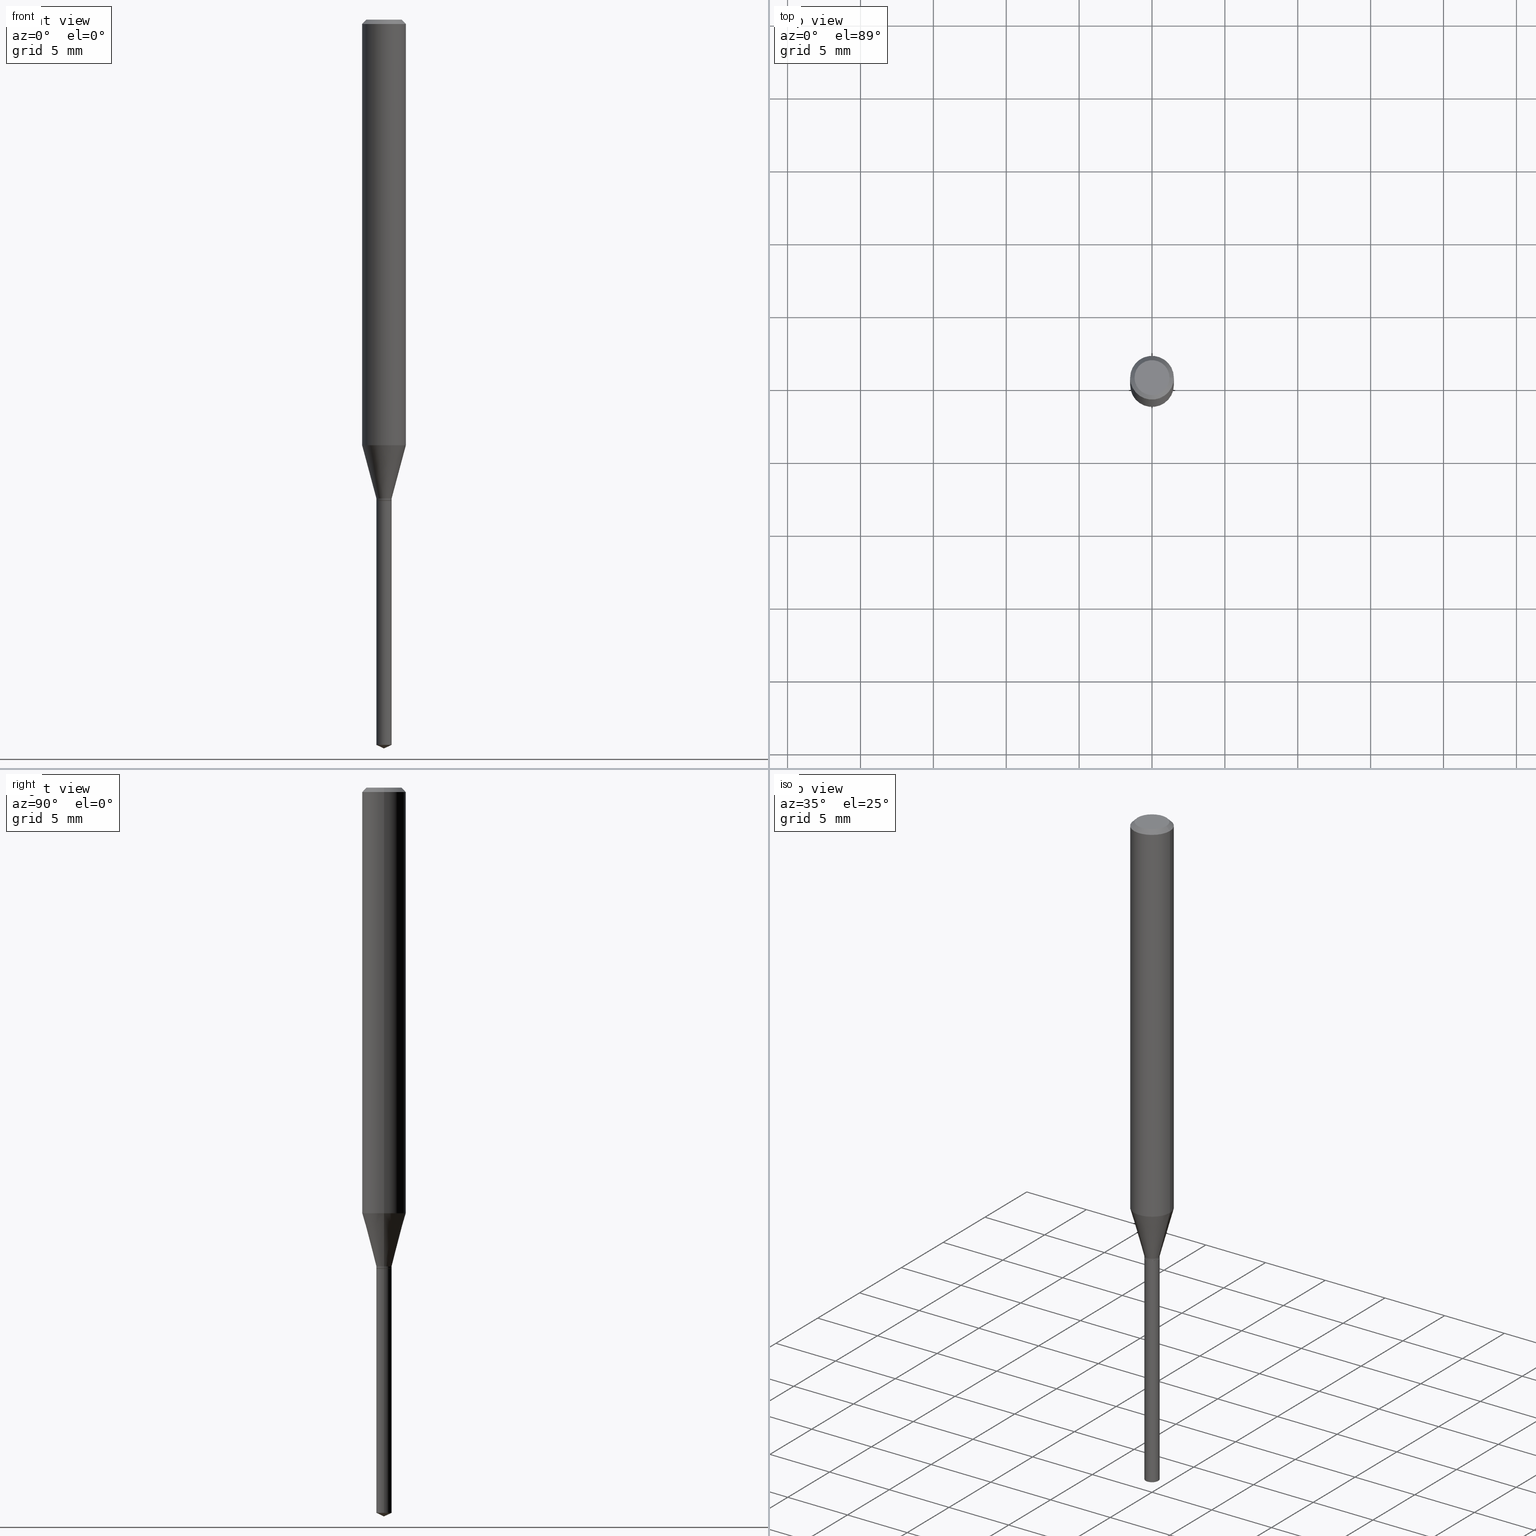
[diagram: canonical four-view strip — front | top / right | iso, engineering-drawing reading convention]
A machine part, canonical four-view strip (front | top / right | iso — engineering-drawing reading convention). The complete STEP part file that produces these views, byte-faithful:
ISO-10303-21;
HEADER;
FILE_DESCRIPTION (( 'STEP AP203' ),
    '1' );
FILE_NAME ('07831.STEP',
    '2024-04-24T04:01:27',
    ( '' ),
    ( '' ),
    'SwSTEP 2.0',
    'SolidWorks 2023',
    '' );
FILE_SCHEMA (( 'CONFIG_CONTROL_DESIGN' ));
ENDSEC;

DATA;
#1 = AXIS2_PLACEMENT_3D ( 'NONE', #14, #62, #412 ) ;
#2 = CC_DESIGN_SECURITY_CLASSIFICATION ( #212, ( #422 ) ) ;
#3 = LINE ( 'NONE', #202, #168 ) ;
#4 = VERTEX_POINT ( 'NONE', #189 ) ;
#5 = APPROVAL_DATE_TIME ( #250, #283 ) ;
#6 = APPROVAL_ROLE ( '' ) ;
#7 = CIRCLE ( 'NONE', #34, 0.02065000000000002944 ) ;
#8 = EDGE_LOOP ( 'NONE', ( #140, #255, #180 ) ) ;
#9 = EDGE_CURVE ( 'NONE', #381, #390, #194, .T. ) ;
#10 = ORIENTED_EDGE ( 'NONE', *, *, #431, .T. ) ;
#11 = DIRECTION ( 'NONE',  ( 1.000000000000000000, -6.982962677686264344E-15, 0.000000000000000000 ) ) ;
#12 = CARTESIAN_POINT ( 'NONE',  ( 0.02065000000000000863, -6.983558837158501362E-15, -1.958870746859099343 ) ) ;
#13 = PERSON_AND_ORGANIZATION ( #451, #465 ) ;
#14 = CARTESIAN_POINT ( 'NONE',  ( 8.265746106709734507E-48, -1.180129479067563789E-33, -3.380025165646692144E-19 ) ) ;
#15 = COORDINATED_UNIVERSAL_TIME_OFFSET ( 5, 0, .BEHIND. ) ;
#16 = AXIS2_PLACEMENT_3D ( 'NONE', #483, #109, #205 ) ;
#17 = SHAPE_DEFINITION_REPRESENTATION ( #489, #90 ) ;
#18 = CARTESIAN_POINT ( 'NONE',  ( -0.05905000000000006771, 4.195754854663396409E-16, -2.904631170795525045E-30 ) ) ;
#19 = DIRECTION ( 'NONE',  ( -2.445468806185136597E-29, 3.491481338843145583E-15, 1.000000000000000000 ) ) ;
#20 = DIRECTION ( 'NONE',  ( -2.445468806185136597E-29, 3.491481338843145583E-15, 1.000000000000000000 ) ) ;
#21 = EDGE_LOOP ( 'NONE', ( #471, #10, #440 ) ) ;
#22 = DIRECTION ( 'NONE',  ( 2.445468806185136597E-29, -3.491481338843145583E-15, -1.000000000000000000 ) ) ;
#23 = EDGE_CURVE ( 'NONE', #480, #4, #453, .T. ) ;
#24 = CONICAL_SURFACE ( 'NONE', #484, 0.05904999999999999832, 0.7853981633974452814 ) ;
#25 = DESIGN_CONTEXT ( 'detailed design', #312, 'design' ) ;
#26 = CARTESIAN_POINT ( 'NONE',  ( 4.790357306792508112E-29, -6.839360657864280434E-15, -1.958870746859099343 ) ) ;
#27 = ORIENTED_EDGE ( 'NONE', *, *, #270, .F. ) ;
#28 = DIRECTION ( 'NONE',  ( -2.445468806185136597E-29, 3.491481338843145583E-15, 1.000000000000000000 ) ) ;
#29 = DIRECTION ( 'NONE',  ( -2.445468806185136597E-29, 3.491481338843145583E-15, 1.000000000000000000 ) ) ;
#30 = DIRECTION ( 'NONE',  ( -0.7071067811868312347, 7.493145998871379679E-15, 0.7071067811862637997 ) ) ;
#31 = PLANE ( 'NONE',  #193 ) ;
#32 = CARTESIAN_POINT ( 'NONE',  ( -0.04724000000000000421, 3.504923541997677355E-16, -3.380025165670481712E-19 ) ) ;
#33 = DIRECTION ( 'NONE',  ( 1.000000000000000000, -6.982962677686266711E-15, 4.876185090822587894E-29 ) ) ;
#34 = AXIS2_PLACEMENT_3D ( 'NONE', #415, #409, #230 ) ;
#35 =( GEOMETRIC_REPRESENTATION_CONTEXT ( 3 ) GLOBAL_UNCERTAINTY_ASSIGNED_CONTEXT ( ( #124 ) ) GLOBAL_UNIT_ASSIGNED_CONTEXT ( ( #207, #457, #158 ) ) REPRESENTATION_CONTEXT ( 'NONE', 'WORKASPACE' ) );
#36 = DIRECTION ( 'NONE',  ( -2.445468806185136877E-29, 3.491481338843145188E-15, 1.000000000000000000 ) ) ;
#37 = FACE_OUTER_BOUND ( 'NONE', #317, .T. ) ;
#38 = DIRECTION ( 'NONE',  ( -2.445468806185136597E-29, 3.491481338843145583E-15, 1.000000000000000000 ) ) ;
#39 = CARTESIAN_POINT ( 'NONE',  ( 8.265746106709734507E-48, -1.180129479067563789E-33, -3.380025165646692144E-19 ) ) ;
#40 = DIRECTION ( 'NONE',  ( -2.445468806185136877E-29, 3.491481338843145188E-15, 1.000000000000000000 ) ) ;
#41 = CARTESIAN_POINT ( 'NONE',  ( 3.177153072995729878E-29, -4.536132555425015522E-15, -1.299200000000000133 ) ) ;
#42 = CIRCLE ( 'NONE', #211, 0.02065000000000000169 ) ;
#43 = AXIS2_PLACEMENT_3D ( 'NONE', #389, #242, #118 ) ;
#44 = ORIENTED_EDGE ( 'NONE', *, *, #359, .T. ) ;
#45 = FACE_OUTER_BOUND ( 'NONE', #292, .T. ) ;
#46 = ORIENTED_EDGE ( 'NONE', *, *, #174, .F. ) ;
#47 = APPROVAL_STATUS ( 'not_yet_approved' ) ;
#48 = ORIENTED_EDGE ( 'NONE', *, *, #273, .F. ) ;
#49 = CARTESIAN_POINT ( 'NONE',  ( 0.05905000000000015098, -4.426462504432298704E-15, -1.149689248989355095 ) ) ;
#50 = MECHANICAL_CONTEXT ( 'NONE', #91, 'mechanical' ) ;
#51 = CARTESIAN_POINT ( 'NONE',  ( 2.888098660104663328E-31, -4.123439461173779030E-17, -0.01181000000000006871 ) ) ;
#52 = CARTESIAN_POINT ( 'NONE',  ( 0.000000000000000000, 0.000000000000000000, 0.000000000000000000 ) ) ;
#53 = ORIENTED_EDGE ( 'NONE', *, *, #214, .T. ) ;
#54 = VECTOR ( 'NONE', #112, 39.37007874015748854 ) ;
#55 = CIRCLE ( 'NONE', #83, 0.05905000000000014404 ) ;
#56 = CYLINDRICAL_SURFACE ( 'NONE', #253, 0.02065000000000000169 ) ;
#57 = ORIENTED_EDGE ( 'NONE', *, *, #214, .F. ) ;
#58 = CARTESIAN_POINT ( 'NONE',  ( 3.177153072995729878E-29, -4.536132555425015522E-15, -1.299200000000000133 ) ) ;
#59 = DIRECTION ( 'NONE',  ( -2.445468806185136597E-29, 3.491481338843145583E-15, 1.000000000000000000 ) ) ;
#60 = EDGE_CURVE ( 'NONE', #287, #333, #236, .T. ) ;
#61 = ORIENTED_EDGE ( 'NONE', *, *, #72, .T. ) ;
#62 = DIRECTION ( 'NONE',  ( -2.445468806185136597E-29, 3.491481338843145583E-15, 1.000000000000000000 ) ) ;
#63 = CARTESIAN_POINT ( 'NONE',  ( 0.05905000000000006771, -4.123439461173745257E-16, 2.879382386107503723E-30 ) ) ;
#64 = DIRECTION ( 'NONE',  ( 1.000000000000000000, -6.982962677686272233E-15, 0.000000000000000000 ) ) ;
#65 = VERTEX_POINT ( 'NONE', #424 ) ;
#66 = ADVANCED_FACE ( 'NONE', ( #418 ), #142, .T. ) ;
#67 = AXIS2_PLACEMENT_3D ( 'NONE', #136, #190, #298 ) ;
#68 = DIRECTION ( 'NONE',  ( -2.445468806185136597E-29, 3.491481338843145583E-15, 1.000000000000000000 ) ) ;
#69 = CARTESIAN_POINT ( 'NONE',  ( 4.813905344975441835E-29, -6.872981015512731707E-15, -1.968500000000000139 ) ) ;
#70 = CARTESIAN_POINT ( 'NONE',  ( 0.02065000000000002944, -4.658683550418409017E-15, -1.293000000000000149 ) ) ;
#71 = CARTESIAN_POINT ( 'NONE',  ( -0.02015000000000000124, -4.390308966995244914E-15, -1.299200000000000133 ) ) ;
#72 = EDGE_CURVE ( 'NONE', #89, #461, #74, .T. ) ;
#73 = CARTESIAN_POINT ( 'NONE',  ( 3.177153072995729878E-29, -4.536132555425015522E-15, -1.299200000000000133 ) ) ;
#74 = CIRCLE ( 'NONE', #16, 0.05904999999999999832 ) ;
#75 = DIRECTION ( 'NONE',  ( 1.000000000000000000, -6.982962677686264344E-15, 0.000000000000000000 ) ) ;
#76 = CARTESIAN_POINT ( 'NONE',  ( -0.05905000000000015098, -3.594543072848583502E-15, -1.149689248989355095 ) ) ;
#77 = DIRECTION ( 'NONE',  ( -2.445468806185136597E-29, 3.491481338843145583E-15, 1.000000000000000000 ) ) ;
#78 = LINE ( 'NONE', #272, #356 ) ;
#79 = DIRECTION ( 'NONE',  ( -0.7071067811865453523, 2.468850131082234184E-15, -0.7071067811865496822 ) ) ;
#80 = ADVANCED_FACE ( 'NONE', ( #445 ), #245, .T. ) ;
#81 = CARTESIAN_POINT ( 'NONE',  ( 0.000000000000000000, 0.000000000000000000, 0.000000000000000000 ) ) ;
#82 = AXIS2_PLACEMENT_3D ( 'NONE', #52, #144, #219 ) ;
#83 = AXIS2_PLACEMENT_3D ( 'NONE', #176, #434, #301 ) ;
#84 = APPROVAL_PERSON_ORGANIZATION ( #249, #449, #463 ) ;
#85 = ORIENTED_EDGE ( 'NONE', *, *, #305, .F. ) ;
#86 = EDGE_CURVE ( 'NONE', #337, #141, #464, .T. ) ;
#87 = PRODUCT ( '07831', '07831', '', ( #50 ) ) ;
#88 = CALENDAR_DATE ( 2024, 24, 4 ) ;
#89 = VERTEX_POINT ( 'NONE', #300 ) ;
#90 = ADVANCED_BREP_SHAPE_REPRESENTATION ( '07831', ( #186, #201, #330 ), #35 ) ;
#91 = APPLICATION_CONTEXT ( 'configuration controlled 3d designs of mechanical parts and assemblies' ) ;
#92 = CIRCLE ( 'NONE', #221, 0.05905000000000014404 ) ;
#93 = ORIENTED_EDGE ( 'NONE', *, *, #372, .F. ) ;
#94 = FACE_OUTER_BOUND ( 'NONE', #138, .T. ) ;
#95 = APPROVAL_STATUS ( 'not_yet_approved' ) ;
#96 = ADVANCED_FACE ( 'NONE', ( #133 ), #408, .T. ) ;
#97 = CARTESIAN_POINT ( 'NONE',  ( -0.02065000000000002944, -4.367758296189726994E-15, -1.293000000000000149 ) ) ;
#98 = VERTEX_POINT ( 'NONE', #49 ) ;
#99 = CC_DESIGN_PERSON_AND_ORGANIZATION_ASSIGNMENT ( #13, #428, ( #240 ) ) ;
#100 = CARTESIAN_POINT ( 'NONE',  ( 3.177153072995729878E-29, -4.536132555425015522E-15, -1.299200000000000133 ) ) ;
#101 = DIRECTION ( 'NONE',  ( -2.445468806185136597E-29, 3.491481338843145583E-15, 1.000000000000000000 ) ) ;
#102 = AXIS2_PLACEMENT_3D ( 'NONE', #382, #28, #197 ) ;
#103 = AXIS2_PLACEMENT_3D ( 'NONE', #41, #77, #387 ) ;
#104 = CYLINDRICAL_SURFACE ( 'NONE', #268, 0.02065000000000002944 ) ;
#105 = VERTEX_POINT ( 'NONE', #328 ) ;
#106 = LINE ( 'NONE', #191, #294 ) ;
#107 = EDGE_CURVE ( 'NONE', #65, #287, #329, .T. ) ;
#108 = DIRECTION ( 'NONE',  ( 1.000000000000000000, -6.982962677686254878E-15, 0.000000000000000000 ) ) ;
#109 = DIRECTION ( 'NONE',  ( -2.445468806185136597E-29, 3.491481338843145583E-15, 1.000000000000000000 ) ) ;
#110 = ORIENTED_EDGE ( 'NONE', *, *, #270, .T. ) ;
#111 = CARTESIAN_POINT ( 'NONE',  ( 3.175930338592638198E-29, -4.534386814755595596E-15, -1.298700000000000632 ) ) ;
#112 = DIRECTION ( 'NONE',  ( 0.9063077870366487154, -4.853149677051359857E-15, 0.4226182617407022724 ) ) ;
#113 = VECTOR ( 'NONE', #340, 39.37007874015748854 ) ;
#114 = CC_DESIGN_APPROVAL ( #283, ( #240 ) ) ;
#115 = PLANE ( 'NONE',  #181 ) ;
#116 = DIRECTION ( 'NONE',  ( -2.445468806185136597E-29, 3.491481338843145583E-15, 1.000000000000000000 ) ) ;
#117 = DIRECTION ( 'NONE',  ( -2.445468806185136597E-29, 3.491481338843145583E-15, 1.000000000000000000 ) ) ;
#118 = DIRECTION ( 'NONE',  ( 1.000000000000000000, -6.982962677686254878E-15, 0.000000000000000000 ) ) ;
#119 = VECTOR ( 'NONE', #40, 39.37007874015748143 ) ;
#120 = EDGE_CURVE ( 'NONE', #224, #402, #442, .T. ) ;
#121 = DIRECTION ( 'NONE',  ( 1.000000000000000000, -6.982962677686254878E-15, 0.000000000000000000 ) ) ;
#122 = DIRECTION ( 'NONE',  ( -2.445468806185136877E-29, 3.491481338843145188E-15, 1.000000000000000000 ) ) ;
#123 = CARTESIAN_POINT ( 'NONE',  ( 0.02065000000000002944, -4.658683550418409017E-15, -1.293000000000000149 ) ) ;
#124 = UNCERTAINTY_MEASURE_WITH_UNIT (LENGTH_MEASURE( 1.000000000000000082E-05 ), #207, 'distance_accuracy_value', 'NONE');
#125 = ORIENTED_EDGE ( 'NONE', *, *, #359, .F. ) ;
#126 = ORIENTED_EDGE ( 'NONE', *, *, #344, .T. ) ;
#127 = CIRCLE ( 'NONE', #275, 0.02065000000000000169 ) ;
#128 = APPROVAL_PERSON_ORGANIZATION ( #137, #283, #6 ) ;
#129 = DATE_TIME_ROLE ( 'creation_date' ) ;
#130 = PRODUCT_RELATED_PRODUCT_CATEGORY ( 'detail', '', ( #87 ) ) ;
#131 = SECURITY_CLASSIFICATION_LEVEL ( 'unclassified' ) ;
#132 = ORIENTED_EDGE ( 'NONE', *, *, #72, .F. ) ;
#133 = FACE_OUTER_BOUND ( 'NONE', #478, .T. ) ;
#134 = VECTOR ( 'NONE', #173, 39.37007874015748143 ) ;
#135 = ORIENTED_EDGE ( 'NONE', *, *, #280, .F. ) ;
#136 = CARTESIAN_POINT ( 'NONE',  ( 3.177153072995729878E-29, -4.536132555425015522E-15, -1.299200000000000133 ) ) ;
#137 = PERSON_AND_ORGANIZATION ( #451, #465 ) ;
#138 = EDGE_LOOP ( 'NONE', ( #466, #468, #297, #125 ) ) ;
#139 = DIRECTION ( 'NONE',  ( 1.000000000000000000, -6.982962677686266711E-15, 0.000000000000000000 ) ) ;
#140 = ORIENTED_EDGE ( 'NONE', *, *, #431, .F. ) ;
#141 = VERTEX_POINT ( 'NONE', #477 ) ;
#142 = CONICAL_SURFACE ( 'NONE', #458, 0.02065000000000002944, 0.2617993877991499629 ) ;
#143 = CARTESIAN_POINT ( 'NONE',  ( 2.888098660104663328E-31, -4.123439461173779030E-17, -0.01181000000000006871 ) ) ;
#144 = DIRECTION ( 'NONE',  ( -2.445468806185136597E-29, 3.491481338843145583E-15, 1.000000000000000000 ) ) ;
#145 = ORIENTED_EDGE ( 'NONE', *, *, #9, .T. ) ;
#146 = CARTESIAN_POINT ( 'NONE',  ( 0.02065000000000002944, -4.678584994049816524E-15, -1.298700000000000632 ) ) ;
#147 = APPROVAL ( #47, 'UNSPECIFIED' ) ;
#148 = DIRECTION ( 'NONE',  ( 1.000000000000000000, -6.982962677686264344E-15, 0.000000000000000000 ) ) ;
#149 = ORIENTED_EDGE ( 'NONE', *, *, #349, .F. ) ;
#150 = DIRECTION ( 'NONE',  ( -2.445468806185136597E-29, 3.491481338843145583E-15, 1.000000000000000000 ) ) ;
#151 = EDGE_CURVE ( 'NONE', #98, #461, #444, .T. ) ;
#152 = CARTESIAN_POINT ( 'NONE',  ( -0.02065000000000000169, -4.389405480490555216E-15, -1.299200000000000133 ) ) ;
#153 = AXIS2_PLACEMENT_3D ( 'NONE', #256, #101, #370 ) ;
#154 = CIRCLE ( 'NONE', #448, 0.02015000000000000124 ) ;
#155 = DIRECTION ( 'NONE',  ( -2.445468806185136597E-29, 3.491481338843145583E-15, 1.000000000000000000 ) ) ;
#156 = ADVANCED_FACE ( 'NONE', ( #94 ), #308, .T. ) ;
#157 = CARTESIAN_POINT ( 'NONE',  ( 4.813905344975441835E-29, -6.872981015512731707E-15, -1.968500000000000139 ) ) ;
#158 =( NAMED_UNIT ( * ) SI_UNIT ( $, .STERADIAN. ) SOLID_ANGLE_UNIT ( ) );
#159 = DIRECTION ( 'NONE',  ( -1.000000000000000000, 6.982962677686265922E-15, -4.876176775795935793E-29 ) ) ;
#160 = AXIS2_PLACEMENT_3D ( 'NONE', #467, #469, #295 ) ;
#161 = EDGE_LOOP ( 'NONE', ( #27, #187, #208, #171 ) ) ;
#162 = CARTESIAN_POINT ( 'NONE',  ( 3.177153072995729878E-29, -4.536132555425015522E-15, -1.299200000000000133 ) ) ;
#163 = ORIENTED_EDGE ( 'NONE', *, *, #419, .F. ) ;
#164 = CYLINDRICAL_SURFACE ( 'NONE', #313, 0.05905000000000006771 ) ;
#165 = CALENDAR_DATE ( 2024, 24, 4 ) ;
#166 = ADVANCED_FACE ( 'NONE', ( #398 ), #24, .T. ) ;
#167 = ORIENTED_EDGE ( 'NONE', *, *, #344, .F. ) ;
#168 = VECTOR ( 'NONE', #488, 39.37007874015748854 ) ;
#169 = COORDINATED_UNIVERSAL_TIME_OFFSET ( 5, 0, .BEHIND. ) ;
#170 = CC_DESIGN_PERSON_AND_ORGANIZATION_ASSIGNMENT ( #392, #319, ( #422 ) ) ;
#171 = ORIENTED_EDGE ( 'NONE', *, *, #479, .F. ) ;
#172 = EDGE_LOOP ( 'NONE', ( #339, #426, #149, #163 ) ) ;
#173 = DIRECTION ( 'NONE',  ( -2.445468806185136877E-29, 3.491481338843145188E-15, 1.000000000000000000 ) ) ;
#174 = EDGE_CURVE ( 'NONE', #461, #89, #379, .T. ) ;
#175 = DIRECTION ( 'NONE',  ( 1.000000000000000000, -6.982962677686254878E-15, 0.000000000000000000 ) ) ;
#176 = CARTESIAN_POINT ( 'NONE',  ( 2.811529195209884553E-29, -4.014118558314923784E-15, -1.149689248989355095 ) ) ;
#177 = ORIENTED_EDGE ( 'NONE', *, *, #188, .F. ) ;
#178 = APPROVAL_STATUS ( 'not_yet_approved' ) ;
#179 = CLOSED_SHELL ( 'NONE', ( #320, #482, #209, #96, #336 ) ) ;
#180 = ORIENTED_EDGE ( 'NONE', *, *, #203, .F. ) ;
#181 = AXIS2_PLACEMENT_3D ( 'NONE', #393, #490, #159 ) ;
#182 = DIRECTION ( 'NONE',  ( -2.445468806185136877E-29, 3.491481338843145188E-15, 1.000000000000000000 ) ) ;
#183 = DIRECTION ( 'NONE',  ( 2.445468806185136597E-29, -3.491481338843145583E-15, -1.000000000000000000 ) ) ;
#184 = EDGE_CURVE ( 'NONE', #333, #381, #438, .T. ) ;
#185 = EDGE_LOOP ( 'NONE', ( #57, #126, #338, #132 ) ) ;
#186 = MANIFOLD_SOLID_BREP ( 'Body-Move/Copy2[1]', #179 ) ;
#187 = ORIENTED_EDGE ( 'NONE', *, *, #372, .T. ) ;
#188 = EDGE_CURVE ( 'NONE', #224, #390, #7, .T. ) ;
#189 = CARTESIAN_POINT ( 'NONE',  ( 0.04724000000000000421, -3.852183633974369345E-16, -3.380025165621689721E-19 ) ) ;
#190 = DIRECTION ( 'NONE',  ( -2.445468806185136597E-29, 3.491481338843145583E-15, 1.000000000000000000 ) ) ;
#191 = CARTESIAN_POINT ( 'NONE',  ( 0.02015000000000000124, -4.676839253380394232E-15, -1.299200000000000133 ) ) ;
#192 = EDGE_LOOP ( 'NONE', ( #290, #222, #474, #361 ) ) ;
#193 = AXIS2_PLACEMENT_3D ( 'NONE', #204, #269, #386 ) ;
#194 = LINE ( 'NONE', #407, #429 ) ;
#195 = CARTESIAN_POINT ( 'NONE',  ( 0.05904999999999999832, -4.463468013801466955E-16, -0.01181000000000006871 ) ) ;
#196 = VERTEX_POINT ( 'NONE', #380 ) ;
#197 = DIRECTION ( 'NONE',  ( 1.000000000000000000, -6.982962677686266711E-15, 0.000000000000000000 ) ) ;
#198 = CARTESIAN_POINT ( 'NONE',  ( 2.811529195209884553E-29, -4.014118558314923784E-15, -1.149689248989355095 ) ) ;
#199 = LINE ( 'NONE', #70, #395 ) ;
#200 = LOCAL_TIME ( 0, 1, 27.00000000000000000, #15 ) ;
#201 = MANIFOLD_SOLID_BREP ( 'Body-Move/Copy2[2]', #252 ) ;
#202 = CARTESIAN_POINT ( 'NONE',  ( 4.813905344975441835E-29, -6.872981015512731707E-15, -1.968500000000000139 ) ) ;
#203 = EDGE_CURVE ( 'NONE', #141, #337, #42, .T. ) ;
#204 = CARTESIAN_POINT ( 'NONE',  ( 3.177153072995729878E-29, -4.536132555425015522E-15, -1.299200000000000133 ) ) ;
#205 = DIRECTION ( 'NONE',  ( 1.000000000000000000, -6.982962677686266711E-15, 0.000000000000000000 ) ) ;
#206 = VECTOR ( 'NONE', #79, 39.37007874015748143 ) ;
#207 =( CONVERSION_BASED_UNIT ( 'INCH', #244 ) LENGTH_UNIT ( ) NAMED_UNIT ( #383 ) );
#208 = ORIENTED_EDGE ( 'NONE', *, *, #174, .T. ) ;
#209 = ADVANCED_FACE ( 'NONE', ( #233 ), #284, .T. ) ;
#210 = CARTESIAN_POINT ( 'NONE',  ( 0.000000000000000000, 0.000000000000000000, 0.000000000000000000 ) ) ;
#211 = AXIS2_PLACEMENT_3D ( 'NONE', #26, #68, #148 ) ;
#212 = SECURITY_CLASSIFICATION ( '', '', #131 ) ;
#213 = DATE_TIME_ROLE ( 'classification_date' ) ;
#214 = EDGE_CURVE ( 'NONE', #402, #89, #347, .T. ) ;
#215 = APPROVAL_ROLE ( '' ) ;
#216 = ORIENTED_EDGE ( 'NONE', *, *, #188, .T. ) ;
#217 = PERSON_AND_ORGANIZATION_ROLE ( 'design_owner' ) ;
#218 = ADVANCED_FACE ( 'NONE', ( #45 ), #307, .T. ) ;
#219 = DIRECTION ( 'NONE',  ( 1.000000000000000000, -6.982962677686266711E-15, 4.876176775795936353E-29 ) ) ;
#220 = CALENDAR_DATE ( 2024, 24, 4 ) ;
#221 = AXIS2_PLACEMENT_3D ( 'NONE', #198, #229, #64 ) ;
#222 = ORIENTED_EDGE ( 'NONE', *, *, #273, .T. ) ;
#223 = ADVANCED_FACE ( 'NONE', ( #258 ), #400, .T. ) ;
#224 = VERTEX_POINT ( 'NONE', #335 ) ;
#225 = DIRECTION ( 'NONE',  ( 1.000000000000000000, -6.982962677686266711E-15, 4.876176775795936353E-29 ) ) ;
#226 = CC_DESIGN_PERSON_AND_ORGANIZATION_ASSIGNMENT ( #291, #362, ( #212 ) ) ;
#227 = EDGE_LOOP ( 'NONE', ( #48, #450, #145, #177 ) ) ;
#228 = CARTESIAN_POINT ( 'NONE',  ( -0.02065000000000002944, 1.467270749344608976E-16, -1.015760096137639348E-30 ) ) ;
#229 = DIRECTION ( 'NONE',  ( -2.445468806185136597E-29, 3.491481338843145583E-15, 1.000000000000000000 ) ) ;
#230 = DIRECTION ( 'NONE',  ( 1.000000000000000000, -6.982962677686254878E-15, 0.000000000000000000 ) ) ;
#231 = ORIENTED_EDGE ( 'NONE', *, *, #441, .T. ) ;
#232 = APPROVAL_PERSON_ORGANIZATION ( #396, #147, #215 ) ;
#233 = FACE_OUTER_BOUND ( 'NONE', #8, .T. ) ;
#234 = LINE ( 'NONE', #195, #285 ) ;
#235 = CARTESIAN_POINT ( 'NONE',  ( 0.05904999999999999832, -4.535783407291118600E-16, -0.01181000000000006871 ) ) ;
#236 = LINE ( 'NONE', #417, #348 ) ;
#237 = EDGE_CURVE ( 'NONE', #265, #337, #299, .T. ) ;
#238 = VECTOR ( 'NONE', #264, 39.37007874015748143 ) ;
#239 = CIRCLE ( 'NONE', #414, 0.02065000000000000169 ) ;
#240 = PRODUCT_DEFINITION ( 'UNKNOWN', '', #422, #25 ) ;
#241 = LINE ( 'NONE', #152, #119 ) ;
#242 = DIRECTION ( 'NONE',  ( -2.445468806185136597E-29, 3.491481338843145583E-15, 1.000000000000000000 ) ) ;
#243 = FACE_OUTER_BOUND ( 'NONE', #21, .T. ) ;
#244 = LENGTH_MEASURE_WITH_UNIT ( LENGTH_MEASURE( 0.02539999999999999897 ), #425 );
#245 = CONICAL_SURFACE ( 'NONE', #363, 0.05904999999999999832, 0.7853981633974452814 ) ;
#246 = ORIENTED_EDGE ( 'NONE', *, *, #60, .F. ) ;
#247 = AXIS2_PLACEMENT_3D ( 'NONE', #81, #391, #377 ) ;
#248 = CARTESIAN_POINT ( 'NONE',  ( 0.000000000000000000, 0.000000000000000000, 0.000000000000000000 ) ) ;
#249 = PERSON_AND_ORGANIZATION ( #451, #465 ) ;
#250 = DATE_AND_TIME ( #88, #200 ) ;
#251 = COORDINATED_UNIVERSAL_TIME_OFFSET ( 5, 0, .BEHIND. ) ;
#252 = CLOSED_SHELL ( 'NONE', ( #156, #80, #223, #66, #405, #354, #218, #397, #166, #316, #311, #486 ) ) ;
#253 = AXIS2_PLACEMENT_3D ( 'NONE', #73, #277, #75 ) ;
#254 = CALENDAR_DATE ( 2024, 24, 4 ) ;
#255 = ORIENTED_EDGE ( 'NONE', *, *, #237, .T. ) ;
#256 = CARTESIAN_POINT ( 'NONE',  ( 3.177153072995729878E-29, -4.536132555425015522E-15, -1.299200000000000133 ) ) ;
#257 = CARTESIAN_POINT ( 'NONE',  ( 2.888098660104663328E-31, -4.123439461173779030E-17, -0.01181000000000006871 ) ) ;
#258 = FACE_OUTER_BOUND ( 'NONE', #263, .T. ) ;
#259 = LOCAL_TIME ( 0, 1, 27.00000000000000000, #401 ) ;
#260 = ORIENTED_EDGE ( 'NONE', *, *, #419, .T. ) ;
#261 = CC_DESIGN_DATE_AND_TIME_ASSIGNMENT ( #289, #129, ( #240 ) ) ;
#262 = EDGE_LOOP ( 'NONE', ( #376, #322 ) ) ;
#263 = EDGE_LOOP ( 'NONE', ( #472, #53, #46, #281 ) ) ;
#264 = DIRECTION ( 'NONE',  ( -2.445468806185136877E-29, 3.491481338843145188E-15, 1.000000000000000000 ) ) ;
#265 = VERTEX_POINT ( 'NONE', #69 ) ;
#266 = ORIENTED_EDGE ( 'NONE', *, *, #120, .F. ) ;
#267 = AXIS2_PLACEMENT_3D ( 'NONE', #51, #334, #139 ) ;
#268 = AXIS2_PLACEMENT_3D ( 'NONE', #416, #59, #225 ) ;
#269 = DIRECTION ( 'NONE',  ( -2.438088387897960049E-29, 3.491481338843145188E-15, 1.000000000000000000 ) ) ;
#270 = EDGE_CURVE ( 'NONE', #4, #480, #476, .T. ) ;
#271 = LINE ( 'NONE', #228, #238 ) ;
#272 = CARTESIAN_POINT ( 'NONE',  ( 0.02065000000000000169, -4.680330734719237239E-15, -1.299200000000000133 ) ) ;
#273 = EDGE_CURVE ( 'NONE', #333, #224, #271, .T. ) ;
#274 = DIRECTION ( 'NONE',  ( 1.000000000000000000, -6.982962677686266711E-15, 0.000000000000000000 ) ) ;
#275 = AXIS2_PLACEMENT_3D ( 'NONE', #100, #446, #346 ) ;
#276 = CYLINDRICAL_SURFACE ( 'NONE', #247, 0.02065000000000002944 ) ;
#277 = DIRECTION ( 'NONE',  ( -2.445468806185136597E-29, 3.491481338843145583E-15, 1.000000000000000000 ) ) ;
#278 = FACE_OUTER_BOUND ( 'NONE', #192, .T. ) ;
#279 = CARTESIAN_POINT ( 'NONE',  ( -9.146439411113230710E-28, 1.305869142145323662E-13, 37.40157874015748263 ) ) ;
#280 = EDGE_CURVE ( 'NONE', #105, #196, #127, .T. ) ;
#281 = ORIENTED_EDGE ( 'NONE', *, *, #151, .F. ) ;
#282 = DIRECTION ( 'NONE',  ( -2.445468806185136597E-29, 3.491481338843145583E-15, 1.000000000000000000 ) ) ;
#283 = APPROVAL ( #95, 'UNSPECIFIED' ) ;
#284 = CONICAL_SURFACE ( 'NONE', #102, 84.42940631927326933, 1.134464013796311121 ) ;
#285 = VECTOR ( 'NONE', #345, 39.37007874015748143 ) ;
#286 = PERSON_AND_ORGANIZATION ( #451, #465 ) ;
#287 = VERTEX_POINT ( 'NONE', #71 ) ;
#288 = EDGE_CURVE ( 'NONE', #390, #224, #403, .T. ) ;
#289 = DATE_AND_TIME ( #254, #485 ) ;
#290 = ORIENTED_EDGE ( 'NONE', *, *, #443, .T. ) ;
#291 = PERSON_AND_ORGANIZATION ( #451, #465 ) ;
#292 = EDGE_LOOP ( 'NONE', ( #266, #216, #260, #167 ) ) ;
#293 = AXIS2_PLACEMENT_3D ( 'NONE', #343, #20, #473 ) ;
#294 = VECTOR ( 'NONE', #378, 39.37007874015748143 ) ;
#295 = DIRECTION ( 'NONE',  ( -1.000000000000000000, 6.982962677686265922E-15, -4.876176775795935793E-29 ) ) ;
#296 = DIRECTION ( 'NONE',  ( 1.000000000000000000, 0.000000000000000000, 0.000000000000000000 ) ) ;
#297 = ORIENTED_EDGE ( 'NONE', *, *, #443, .F. ) ;
#298 = DIRECTION ( 'NONE',  ( 1.000000000000000000, -6.982962677686286432E-15, 0.000000000000000000 ) ) ;
#299 = LINE ( 'NONE', #157, #54 ) ;
#300 = CARTESIAN_POINT ( 'NONE',  ( -0.05904999999999999832, -1.608100990996990277E-15, -0.01181000000000006871 ) ) ;
#301 = DIRECTION ( 'NONE',  ( 1.000000000000000000, -6.982962677686272233E-15, 0.000000000000000000 ) ) ;
#302 = AXIS2_PLACEMENT_3D ( 'NONE', #58, #19, #11 ) ;
#303 = ORIENTED_EDGE ( 'NONE', *, *, #479, .T. ) ;
#304 = EDGE_LOOP ( 'NONE', ( #365, #110 ) ) ;
#305 = EDGE_CURVE ( 'NONE', #141, #105, #241, .T. ) ;
#306 = DIRECTION ( 'NONE',  ( -1.000000000000000000, 6.982962677686266711E-15, 0.000000000000000000 ) ) ;
#307 = CONICAL_SURFACE ( 'NONE', #369, 0.02065000000000002944, 0.2617993877991499629 ) ;
#308 = CONICAL_SURFACE ( 'NONE', #153, 0.02015000000000000124, 0.7853981633978495136 ) ;
#309 = CARTESIAN_POINT ( 'NONE',  ( 3.161991166397382055E-29, -4.514485371124187300E-15, -1.293000000000000149 ) ) ;
#310 = DIRECTION ( 'NONE',  ( -2.445468806185136597E-29, 3.491481338843145583E-15, 1.000000000000000000 ) ) ;
#311 = ADVANCED_FACE ( 'NONE', ( #37 ), #31, .F. ) ;
#312 = APPLICATION_CONTEXT ( 'configuration controlled 3d designs of mechanical parts and assemblies' ) ;
#313 = AXIS2_PLACEMENT_3D ( 'NONE', #248, #117, #421 ) ;
#314 = EDGE_CURVE ( 'NONE', #337, #196, #78, .T. ) ;
#315 = CARTESIAN_POINT ( 'NONE',  ( 3.177153072995729878E-29, -4.536132555425015522E-15, -1.299200000000000133 ) ) ;
#316 = ADVANCED_FACE ( 'NONE', ( #388 ), #115, .F. ) ;
#317 = EDGE_LOOP ( 'NONE', ( #410, #332 ) ) ;
#318 = CARTESIAN_POINT ( 'NONE',  ( -0.02065000000000002944, -4.377709018005430748E-15, -1.298700000000000632 ) ) ;
#319 = PERSON_AND_ORGANIZATION_ROLE ( 'creator' ) ;
#320 = ADVANCED_FACE ( 'NONE', ( #459 ), #56, .T. ) ;
#321 = CC_DESIGN_APPROVAL ( #147, ( #212 ) ) ;
#322 = ORIENTED_EDGE ( 'NONE', *, *, #280, .T. ) ;
#323 = CALENDAR_DATE ( 2024, 24, 4 ) ;
#324 = ORIENTED_EDGE ( 'NONE', *, *, #86, .T. ) ;
#325 = DATE_AND_TIME ( #323, #373 ) ;
#326 = CC_DESIGN_DATE_AND_TIME_ASSIGNMENT ( #325, #213, ( #212 ) ) ;
#327 = APPLICATION_PROTOCOL_DEFINITION ( 'international standard', 'config_control_design', 1994, #312 ) ;
#328 = CARTESIAN_POINT ( 'NONE',  ( -0.02065000000000000169, -5.541019531710188461E-15, -1.299200000000000133 ) ) ;
#329 = CIRCLE ( 'NONE', #67, 0.02015000000000000124 ) ;
#330 = AXIS2_PLACEMENT_3D ( 'NONE', #210, #360, #296 ) ;
#331 = APPROVAL_DATE_TIME ( #367, #449 ) ;
#332 = ORIENTED_EDGE ( 'NONE', *, *, #441, .F. ) ;
#333 = VERTEX_POINT ( 'NONE', #318 ) ;
#334 = DIRECTION ( 'NONE',  ( -2.445468806185136597E-29, 3.491481338843145583E-15, 1.000000000000000000 ) ) ;
#335 = CARTESIAN_POINT ( 'NONE',  ( -0.02065000000000002944, -4.377709018005430748E-15, -1.293000000000000149 ) ) ;
#336 = ADVANCED_FACE ( 'NONE', ( #487 ), #353, .F. ) ;
#337 = VERTEX_POINT ( 'NONE', #12 ) ;
#338 = ORIENTED_EDGE ( 'NONE', *, *, #151, .T. ) ;
#339 = ORIENTED_EDGE ( 'NONE', *, *, #288, .T. ) ;
#340 = DIRECTION ( 'NONE',  ( -0.2588190451025212391, 5.211531920934549464E-15, 0.9659258262890679791 ) ) ;
#341 = AXIS2_PLACEMENT_3D ( 'NONE', #481, #150, #420 ) ;
#342 = ORIENTED_EDGE ( 'NONE', *, *, #314, .T. ) ;
#343 = CARTESIAN_POINT ( 'NONE',  ( 4.790357306792508112E-29, -6.839360657864280434E-15, -1.958870746859099343 ) ) ;
#344 = EDGE_CURVE ( 'NONE', #402, #98, #55, .T. ) ;
#345 = DIRECTION ( 'NONE',  ( 0.7071067811865453523, -7.319954787623248157E-15, -0.7071067811865496822 ) ) ;
#346 = DIRECTION ( 'NONE',  ( 1.000000000000000000, -6.982962677686264344E-15, 0.000000000000000000 ) ) ;
#347 = LINE ( 'NONE', #18, #384 ) ;
#348 = VECTOR ( 'NONE', #30, 39.37007874015748143 ) ;
#349 = EDGE_CURVE ( 'NONE', #98, #402, #92, .T. ) ;
#350 = CIRCLE ( 'NONE', #43, 0.02065000000000002944 ) ;
#351 = CARTESIAN_POINT ( 'NONE',  ( -0.05904999999999999832, 3.711095515056362547E-16, -0.01181000000000006871 ) ) ;
#352 = LINE ( 'NONE', #351, #206 ) ;
#353 = PLANE ( 'NONE',  #160 ) ;
#354 = ADVANCED_FACE ( 'NONE', ( #456 ), #104, .T. ) ;
#355 = APPLICATION_PROTOCOL_DEFINITION ( 'international standard', 'config_control_design', 1994, #91 ) ;
#356 = VECTOR ( 'NONE', #122, 39.37007874015748143 ) ;
#357 = CC_DESIGN_PERSON_AND_ORGANIZATION_ASSIGNMENT ( #366, #217, ( #87 ) ) ;
#358 = DIRECTION ( 'NONE',  ( 1.000000000000000000, -6.982962677686286432E-15, 0.000000000000000000 ) ) ;
#359 = EDGE_CURVE ( 'NONE', #65, #381, #106, .T. ) ;
#360 = DIRECTION ( 'NONE',  ( 0.000000000000000000, 0.000000000000000000, 1.000000000000000000 ) ) ;
#361 = ORIENTED_EDGE ( 'NONE', *, *, #9, .F. ) ;
#362 = PERSON_AND_ORGANIZATION_ROLE ( 'classification_officer' ) ;
#363 = AXIS2_PLACEMENT_3D ( 'NONE', #143, #22, #306 ) ;
#364 = CONICAL_SURFACE ( 'NONE', #430, 84.42940631927326933, 1.134464013796311121 ) ;
#365 = ORIENTED_EDGE ( 'NONE', *, *, #23, .T. ) ;
#366 = PERSON_AND_ORGANIZATION ( #451, #465 ) ;
#367 = DATE_AND_TIME ( #165, #439 ) ;
#368 = EDGE_LOOP ( 'NONE', ( #246, #231, #44, #406 ) ) ;
#369 = AXIS2_PLACEMENT_3D ( 'NONE', #437, #282, #175 ) ;
#370 = DIRECTION ( 'NONE',  ( 1.000000000000000000, -6.982962677686286432E-15, 0.000000000000000000 ) ) ;
#371 = CC_DESIGN_APPROVAL ( #449, ( #422 ) ) ;
#372 = EDGE_CURVE ( 'NONE', #4, #461, #234, .T. ) ;
#373 = LOCAL_TIME ( 0, 1, 27.00000000000000000, #169 ) ;
#374 = APPROVAL_DATE_TIME ( #375, #147 ) ;
#375 = DATE_AND_TIME ( #220, #259 ) ;
#376 = ORIENTED_EDGE ( 'NONE', *, *, #455, .T. ) ;
#377 = DIRECTION ( 'NONE',  ( 1.000000000000000000, -6.982962677686266711E-15, 4.876176775795936353E-29 ) ) ;
#378 = DIRECTION ( 'NONE',  ( 0.7071067811868312347, -2.468850131085228700E-15, 0.7071067811862637997 ) ) ;
#379 = CIRCLE ( 'NONE', #267, 0.05904999999999999832 ) ;
#380 = CARTESIAN_POINT ( 'NONE',  ( 0.02065000000000000169, -4.680330734719237239E-15, -1.299200000000000133 ) ) ;
#381 = VERTEX_POINT ( 'NONE', #146 ) ;
#382 = CARTESIAN_POINT ( 'NONE',  ( -9.146439411113230710E-28, 1.305869142145323662E-13, 37.40157874015748263 ) ) ;
#383 = DIMENSIONAL_EXPONENTS ( 1.000000000000000000, 0.000000000000000000, 0.000000000000000000, 0.000000000000000000, 0.000000000000000000, 0.000000000000000000, 0.000000000000000000 ) ;
#384 = VECTOR ( 'NONE', #36, 39.37007874015748143 ) ;
#385 = DIRECTION ( 'NONE',  ( 0.2588190451025212391, 1.565188264969622362E-15, 0.9659258262890679791 ) ) ;
#386 = DIRECTION ( 'NONE',  ( 1.000000000000000000, -6.982962677686265922E-15, 4.876176775795935793E-29 ) ) ;
#387 = DIRECTION ( 'NONE',  ( 1.000000000000000000, -6.982962677686286432E-15, 0.000000000000000000 ) ) ;
#388 = FACE_OUTER_BOUND ( 'NONE', #304, .T. ) ;
#389 = CARTESIAN_POINT ( 'NONE',  ( 3.175930338592638198E-29, -4.534386814755595596E-15, -1.298700000000000632 ) ) ;
#390 = VERTEX_POINT ( 'NONE', #123 ) ;
#391 = DIRECTION ( 'NONE',  ( -2.445468806185136597E-29, 3.491481338843145583E-15, 1.000000000000000000 ) ) ;
#392 = PERSON_AND_ORGANIZATION ( #451, #465 ) ;
#393 = CARTESIAN_POINT ( 'NONE',  ( 4.132873053354867254E-48, -5.900647395337818946E-34, -1.690012582823346072E-19 ) ) ;
#394 = PERSON_AND_ORGANIZATION_ROLE ( 'design_supplier' ) ;
#395 = VECTOR ( 'NONE', #385, 39.37007874015748854 ) ;
#396 = PERSON_AND_ORGANIZATION ( #451, #465 ) ;
#397 = ADVANCED_FACE ( 'NONE', ( #427 ), #164, .T. ) ;
#398 = FACE_OUTER_BOUND ( 'NONE', #404, .T. ) ;
#399 = DIRECTION ( 'NONE',  ( -1.000000000000000000, 6.982962677686266711E-15, 0.000000000000000000 ) ) ;
#400 = CYLINDRICAL_SURFACE ( 'NONE', #82, 0.05905000000000006771 ) ;
#401 = COORDINATED_UNIVERSAL_TIME_OFFSET ( 5, 0, .BEHIND. ) ;
#402 = VERTEX_POINT ( 'NONE', #76 ) ;
#403 = CIRCLE ( 'NONE', #341, 0.02065000000000002944 ) ;
#404 = EDGE_LOOP ( 'NONE', ( #93, #433, #303, #61 ) ) ;
#405 = ADVANCED_FACE ( 'NONE', ( #278 ), #276, .T. ) ;
#406 = ORIENTED_EDGE ( 'NONE', *, *, #184, .F. ) ;
#407 = CARTESIAN_POINT ( 'NONE',  ( 0.02065000000000002944, -1.441981792942216182E-16, 1.006930504201862259E-30 ) ) ;
#408 = CYLINDRICAL_SURFACE ( 'NONE', #302, 0.02065000000000000169 ) ;
#409 = DIRECTION ( 'NONE',  ( -2.445468806185136597E-29, 3.491481338843145583E-15, 1.000000000000000000 ) ) ;
#410 = ORIENTED_EDGE ( 'NONE', *, *, #107, .F. ) ;
#411 = CC_DESIGN_PERSON_AND_ORGANIZATION_ASSIGNMENT ( #286, #394, ( #422 ) ) ;
#412 = DIRECTION ( 'NONE',  ( 1.000000000000000000, -6.982962677686266711E-15, 4.876185090822587894E-29 ) ) ;
#413 = AXIS2_PLACEMENT_3D ( 'NONE', #111, #470, #108 ) ;
#414 = AXIS2_PLACEMENT_3D ( 'NONE', #315, #38, #460 ) ;
#415 = CARTESIAN_POINT ( 'NONE',  ( 3.161991166397382055E-29, -4.514485371124187300E-15, -1.293000000000000149 ) ) ;
#416 = CARTESIAN_POINT ( 'NONE',  ( 0.000000000000000000, 0.000000000000000000, 0.000000000000000000 ) ) ;
#417 = CARTESIAN_POINT ( 'NONE',  ( -0.02015000000000000124, -4.392958194169355326E-15, -1.299200000000000133 ) ) ;
#418 = FACE_OUTER_BOUND ( 'NONE', #172, .T. ) ;
#419 = EDGE_CURVE ( 'NONE', #390, #98, #199, .T. ) ;
#420 = DIRECTION ( 'NONE',  ( 1.000000000000000000, -6.982962677686254878E-15, 0.000000000000000000 ) ) ;
#421 = DIRECTION ( 'NONE',  ( 1.000000000000000000, -6.982962677686266711E-15, 4.876176775795936353E-29 ) ) ;
#422 = PRODUCT_DEFINITION_FORMATION_WITH_SPECIFIED_SOURCE ( 'ANY', '', #87, .NOT_KNOWN. ) ;
#423 = FACE_OUTER_BOUND ( 'NONE', #368, .T. ) ;
#424 = CARTESIAN_POINT ( 'NONE',  ( 0.02015000000000000124, -4.676839253380394232E-15, -1.299200000000000133 ) ) ;
#425 =( LENGTH_UNIT ( ) NAMED_UNIT ( * ) SI_UNIT ( $, .METRE. ) );
#426 = ORIENTED_EDGE ( 'NONE', *, *, #120, .T. ) ;
#427 = FACE_OUTER_BOUND ( 'NONE', #185, .T. ) ;
#428 = PERSON_AND_ORGANIZATION_ROLE ( 'creator' ) ;
#429 = VECTOR ( 'NONE', #182, 39.37007874015748143 ) ;
#430 = AXIS2_PLACEMENT_3D ( 'NONE', #279, #116, #274 ) ;
#431 = EDGE_CURVE ( 'NONE', #265, #141, #3, .T. ) ;
#432 = EDGE_LOOP ( 'NONE', ( #324, #475, #452, #436 ) ) ;
#433 = ORIENTED_EDGE ( 'NONE', *, *, #23, .F. ) ;
#434 = DIRECTION ( 'NONE',  ( -2.445468806185136597E-29, 3.491481338843145583E-15, 1.000000000000000000 ) ) ;
#435 = COORDINATED_UNIVERSAL_TIME_OFFSET ( 5, 0, .BEHIND. ) ;
#436 = ORIENTED_EDGE ( 'NONE', *, *, #314, .F. ) ;
#437 = CARTESIAN_POINT ( 'NONE',  ( 3.161991166397382055E-29, -4.514485371124187300E-15, -1.293000000000000149 ) ) ;
#438 = CIRCLE ( 'NONE', #413, 0.02065000000000002944 ) ;
#439 = LOCAL_TIME ( 0, 1, 27.00000000000000000, #251 ) ;
#440 = ORIENTED_EDGE ( 'NONE', *, *, #86, .F. ) ;
#441 = EDGE_CURVE ( 'NONE', #287, #65, #154, .T. ) ;
#442 = LINE ( 'NONE', #97, #113 ) ;
#443 = EDGE_CURVE ( 'NONE', #381, #333, #350, .T. ) ;
#444 = LINE ( 'NONE', #63, #134 ) ;
#445 = FACE_OUTER_BOUND ( 'NONE', #161, .T. ) ;
#446 = DIRECTION ( 'NONE',  ( -2.445468806185136597E-29, 3.491481338843145583E-15, 1.000000000000000000 ) ) ;
#447 = AXIS2_PLACEMENT_3D ( 'NONE', #39, #29, #33 ) ;
#448 = AXIS2_PLACEMENT_3D ( 'NONE', #162, #155, #358 ) ;
#449 = APPROVAL ( #178, 'UNSPECIFIED' ) ;
#450 = ORIENTED_EDGE ( 'NONE', *, *, #184, .T. ) ;
#451 = PERSON ( 'UNSPECIFIED', 'UNSPECIFIED', 'UNSPECIFIED', ('UNSPECIFIED'), ('UNSPECIFIED'), ('UNSPECIFIED') ) ;
#452 = ORIENTED_EDGE ( 'NONE', *, *, #455, .F. ) ;
#453 = CIRCLE ( 'NONE', #1, 0.04724000000000000421 ) ;
#454 = CONICAL_SURFACE ( 'NONE', #103, 0.02015000000000000124, 0.7853981633978495136 ) ;
#455 = EDGE_CURVE ( 'NONE', #196, #105, #239, .T. ) ;
#456 = FACE_OUTER_BOUND ( 'NONE', #227, .T. ) ;
#457 =( NAMED_UNIT ( * ) PLANE_ANGLE_UNIT ( ) SI_UNIT ( $, .RADIAN. ) );
#458 = AXIS2_PLACEMENT_3D ( 'NONE', #309, #310, #121 ) ;
#459 = FACE_OUTER_BOUND ( 'NONE', #432, .T. ) ;
#460 = DIRECTION ( 'NONE',  ( 1.000000000000000000, -6.982962677686264344E-15, 0.000000000000000000 ) ) ;
#461 = VERTEX_POINT ( 'NONE', #235 ) ;
#462 = ORIENTED_EDGE ( 'NONE', *, *, #203, .T. ) ;
#463 = APPROVAL_ROLE ( '' ) ;
#464 = CIRCLE ( 'NONE', #293, 0.02065000000000000169 ) ;
#465 = ORGANIZATION ( 'UNSPECIFIED', 'UNSPECIFIED', '' ) ;
#466 = ORIENTED_EDGE ( 'NONE', *, *, #107, .T. ) ;
#467 = CARTESIAN_POINT ( 'NONE',  ( 3.177153072995729878E-29, -4.536132555425015522E-15, -1.299200000000000133 ) ) ;
#468 = ORIENTED_EDGE ( 'NONE', *, *, #60, .T. ) ;
#469 = DIRECTION ( 'NONE',  ( 2.438088387897960049E-29, -3.491481338843145188E-15, -1.000000000000000000 ) ) ;
#470 = DIRECTION ( 'NONE',  ( -2.445468806185136597E-29, 3.491481338843145583E-15, 1.000000000000000000 ) ) ;
#471 = ORIENTED_EDGE ( 'NONE', *, *, #237, .F. ) ;
#472 = ORIENTED_EDGE ( 'NONE', *, *, #349, .T. ) ;
#473 = DIRECTION ( 'NONE',  ( 1.000000000000000000, -6.982962677686264344E-15, 0.000000000000000000 ) ) ;
#474 = ORIENTED_EDGE ( 'NONE', *, *, #288, .F. ) ;
#475 = ORIENTED_EDGE ( 'NONE', *, *, #305, .T. ) ;
#476 = CIRCLE ( 'NONE', #447, 0.04724000000000000421 ) ;
#477 = CARTESIAN_POINT ( 'NONE',  ( -0.02065000000000000863, -6.692633582929820128E-15, -1.958870746859099343 ) ) ;
#478 = EDGE_LOOP ( 'NONE', ( #85, #462, #342, #135 ) ) ;
#479 = EDGE_CURVE ( 'NONE', #480, #89, #352, .T. ) ;
#480 = VERTEX_POINT ( 'NONE', #32 ) ;
#481 = CARTESIAN_POINT ( 'NONE',  ( 3.161991166397382055E-29, -4.514485371124187300E-15, -1.293000000000000149 ) ) ;
#482 = ADVANCED_FACE ( 'NONE', ( #243 ), #364, .T. ) ;
#483 = CARTESIAN_POINT ( 'NONE',  ( 2.888098660104663328E-31, -4.123439461173779030E-17, -0.01181000000000006871 ) ) ;
#484 = AXIS2_PLACEMENT_3D ( 'NONE', #257, #183, #399 ) ;
#485 = LOCAL_TIME ( 0, 1, 27.00000000000000000, #435 ) ;
#486 = ADVANCED_FACE ( 'NONE', ( #423 ), #454, .T. ) ;
#487 = FACE_OUTER_BOUND ( 'NONE', #262, .T. ) ;
#488 = DIRECTION ( 'NONE',  ( -0.9063077870366487154, 7.915267918739016209E-15, 0.4226182617407022724 ) ) ;
#489 = PRODUCT_DEFINITION_SHAPE ( 'NONE', 'NONE',  #240 ) ;
#490 = DIRECTION ( 'NONE',  ( 2.438088387897960049E-29, -3.491481338843145188E-15, -1.000000000000000000 ) ) ;
ENDSEC;
END-ISO-10303-21;
